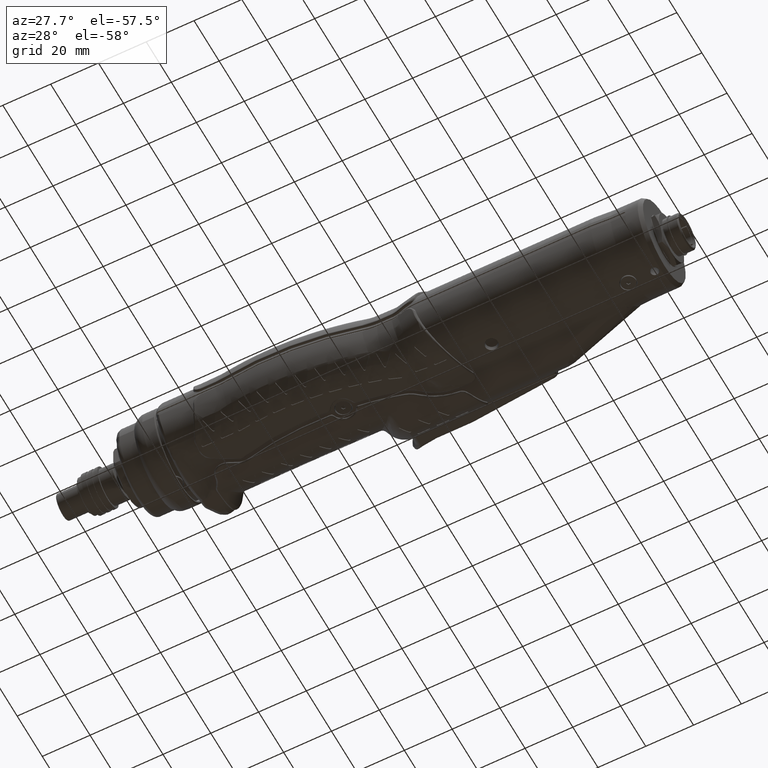
[diagram: clean part render]
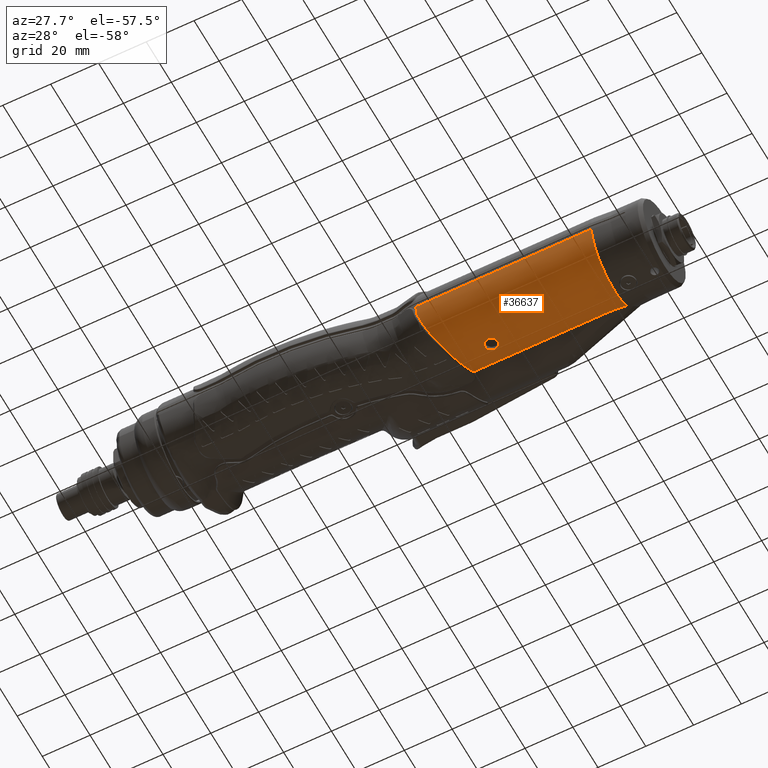
[diagram: same view with one face highlighted and labeled with its STEP entity id]
A machine part, auxiliary view. The second image highlights one B-rep face of the part: STEP entity #36637.
In plain terms, the highlighted cylindrical surface (partial cylindrical patch) has radius 18.5 mm, axis along (1, 0, 0).
Its self-contained STEP definition (entity closure, byte-faithful):
#81=FACE_BOUND('',#9241,.T.);
#1811=LINE('',#58648,#3725);
#1839=LINE('',#59231,#3753);
#3725=VECTOR('',#44867,10.);
#3753=VECTOR('',#44935,10.);
#5038=ELLIPSE('',#39548,297.040718051805,18.5);
#5638=CYLINDRICAL_SURFACE('',#39546,18.5);
#6893=FACE_OUTER_BOUND('',#9240,.T.);
#9240=EDGE_LOOP('',(#26896,#26897,#26898,#26899,#26900,#26901,#26902));
#9241=EDGE_LOOP('',(#26903,#26904));
#11535=CIRCLE('',#39547,18.5);
#11536=CIRCLE('',#39549,18.5);
#12478=B_SPLINE_CURVE_WITH_KNOTS('',3,(#59208,#59209,#59210,#59211,#59212,
#59213,#59214,#59215,#59216,#59217,#59218,#59219,#59220,#59221,#59222,#59223,
#59224,#59225,#59226,#59227,#59228,#59229),.UNSPECIFIED.,.F.,.F.,(4,2,2,
2,2,2,2,2,2,2,4),(6.3473237850227,6.43288841858804,6.78289384063464,7.13289926268123,
7.5095840936805,7.88626892467976,8.26295375567903,8.63963858667829,8.99848788548487,
9.35733718429145,9.54325160797309),.UNSPECIFIED.);
#12479=B_SPLINE_CURVE_WITH_KNOTS('',3,(#59233,#59234,#59235,#59236,#59237,
#59238),.UNSPECIFIED.,.F.,.F.,(4,1,1,4),(0.699848391335928,0.991103510710776,
1.28235863008562,1.7192413091479),.UNSPECIFIED.);
#12480=B_SPLINE_CURVE_WITH_KNOTS('',3,(#59245,#59246,#59247,#59248,#59249,
#59250,#59251,#59252,#59253,#59254),.UNSPECIFIED.,.F.,.F.,(4,2,2,2,4),(0.,
0.0984317264590929,0.196863452918186,0.295378180244501,0.393892907570816),
 .UNSPECIFIED.);
#12481=B_SPLINE_CURVE_WITH_KNOTS('',3,(#59255,#59256,#59257,#59258,#59259,
#59260,#59261,#59262,#59263,#59264,#59265,#59266,#59267,#59268,#59269,#59270,
#59271,#59272,#59273,#59274,#59275,#59276,#59277,#59278,#59279,#59280),
 .UNSPECIFIED.,.F.,.F.,(4,2,2,2,2,2,2,2,2,2,2,2,4),(0.393892907570816,0.492407634897131,
0.590922362223445,0.689354088682538,0.787785815141631,0.886217541600724,
0.984649268059817,1.08316399538613,1.18167872271245,1.28019345003876,1.37870817736508,
1.47713990382417,1.57557163028326),.UNSPECIFIED.);
#15180=VERTEX_POINT('',#57612);
#15400=VERTEX_POINT('',#58647);
#15470=VERTEX_POINT('',#59206);
#15471=VERTEX_POINT('',#59207);
#15472=VERTEX_POINT('',#59230);
#15473=VERTEX_POINT('',#59232);
#15474=VERTEX_POINT('',#59239);
#15475=VERTEX_POINT('',#59243);
#15476=VERTEX_POINT('',#59244);
#19600=EDGE_CURVE('',#15400,#15180,#1811,.T.);
#19688=EDGE_CURVE('',#15470,#15471,#12478,.T.);
#19689=EDGE_CURVE('',#15472,#15471,#1839,.T.);
#19690=EDGE_CURVE('',#15473,#15472,#12479,.T.);
#19691=EDGE_CURVE('',#15473,#15474,#11535,.T.);
#19692=EDGE_CURVE('',#15474,#15400,#5038,.T.);
#19693=EDGE_CURVE('',#15180,#15470,#11536,.T.);
#19694=EDGE_CURVE('',#15475,#15476,#12480,.T.);
#19695=EDGE_CURVE('',#15476,#15475,#12481,.T.);
#26896=ORIENTED_EDGE('',*,*,#19688,.T.);
#26897=ORIENTED_EDGE('',*,*,#19689,.F.);
#26898=ORIENTED_EDGE('',*,*,#19690,.F.);
#26899=ORIENTED_EDGE('',*,*,#19691,.T.);
#26900=ORIENTED_EDGE('',*,*,#19692,.T.);
#26901=ORIENTED_EDGE('',*,*,#19600,.T.);
#26902=ORIENTED_EDGE('',*,*,#19693,.T.);
#26903=ORIENTED_EDGE('',*,*,#19694,.T.);
#26904=ORIENTED_EDGE('',*,*,#19695,.T.);
#36637=ADVANCED_FACE('',(#6893,#81),#5638,.T.);
#39546=AXIS2_PLACEMENT_3D('',#59205,#44933,#44934);
#39547=AXIS2_PLACEMENT_3D('',#59240,#44936,#44937);
#39548=AXIS2_PLACEMENT_3D('',#59241,#44938,#44939);
#39549=AXIS2_PLACEMENT_3D('',#59242,#44940,#44941);
#44867=DIRECTION('',(-1.,0.,0.));
#44933=DIRECTION('center_axis',(1.,0.,0.));
#44934=DIRECTION('ref_axis',(0.,-1.,0.));
#44935=DIRECTION('',(-1.,0.,0.));
#44936=DIRECTION('center_axis',(-1.,0.,0.));
#44937=DIRECTION('ref_axis',(0.,-1.,0.));
#44938=DIRECTION('center_axis',(-0.0622810236971402,0.996496379154252,0.0558215049931637));
#44939=DIRECTION('ref_axis',(-0.99805865262881,-0.0621835344453471,-0.00348338293158634));
#44940=DIRECTION('center_axis',(1.,0.,0.));
#44941=DIRECTION('ref_axis',(0.,0.,-1.));
#57612=CARTESIAN_POINT('',(108.,-18.384706504471,-2.06217524581701));
#58647=CARTESIAN_POINT('',(181.296400589888,-18.384706504471,-2.06217524581696));
#58648=CARTESIAN_POINT('',(144.65,-18.384706504471,-2.06217524581696));
#59205=CARTESIAN_POINT('Origin',(144.65,0.,0.));
#59206=CARTESIAN_POINT('',(108.,-17.4296372041669,-6.20143103897175));
#59207=CARTESIAN_POINT('',(117.709605004166,8.7878559110383,-16.2795450945912));
#59208=CARTESIAN_POINT('Ctrl Pts',(108.,-17.4296372041669,-6.20143103897175));
#59209=CARTESIAN_POINT('Ctrl Pts',(108.053650356973,-17.3302373515479,-6.48080258376669));
#59210=CARTESIAN_POINT('Ctrl Pts',(108.110662515367,-17.2242068700937,-6.75752462493135));
#59211=CARTESIAN_POINT('Ctrl Pts',(108.416793910509,-16.6520976357089,-8.14989766158282));
#59212=CARTESIAN_POINT('Ctrl Pts',(108.716195464902,-16.0838517912481,-9.21669302897662));
#59213=CARTESIAN_POINT('Ctrl Pts',(109.379930906669,-14.7849153359103,-11.182307339896));
#59214=CARTESIAN_POINT('Ctrl Pts',(109.74401873187,-14.054158768063,-12.081165777262));
#59215=CARTESIAN_POINT('Ctrl Pts',(110.513086103481,-12.4555195943865,-13.7305382478289));
#59216=CARTESIAN_POINT('Ctrl Pts',(110.948870210501,-11.5200823289128,-14.5282486962095));
#59217=CARTESIAN_POINT('Ctrl Pts',(111.853550938421,-9.48183777922309,-15.9335199945852));
#59218=CARTESIAN_POINT('Ctrl Pts',(112.322219824736,-8.3790348626719,-16.5412337763603));
#59219=CARTESIAN_POINT('Ctrl Pts',(113.249637209678,-6.07159992380535,-17.5201689291634));
#59220=CARTESIAN_POINT('Ctrl Pts',(113.708864469952,-4.86540347141322,-17.8919714113757));
#59221=CARTESIAN_POINT('Ctrl Pts',(114.581591353868,-2.42838787476378,-18.3819945669735));
#59222=CARTESIAN_POINT('Ctrl Pts',(114.995057979117,-1.19751363905229,-18.5));
#59223=CARTESIAN_POINT('Ctrl Pts',(115.732252727857,1.14081294047666,-18.5));
#59224=CARTESIAN_POINT('Ctrl Pts',(116.083728276386,2.32897540439131,-18.3927459724879));
#59225=CARTESIAN_POINT('Ctrl Pts',(116.738681833699,4.70735168028072,-17.9320403470145));
#59226=CARTESIAN_POINT('Ctrl Pts',(117.042212397249,5.89755134216134,-17.5785904148108));
#59227=CARTESIAN_POINT('Ctrl Pts',(117.45407434781,7.63837307652401,-16.8617337090785));
#59228=CARTESIAN_POINT('Ctrl Pts',(117.586251240292,8.2214593785402,-16.5852914214808));
#59229=CARTESIAN_POINT('Ctrl Pts',(117.709605004166,8.7878559110383,-16.2795450945912));
#59230=CARTESIAN_POINT('',(171.620611076957,8.78785591103831,-16.2795450945912));
#59231=CARTESIAN_POINT('',(144.65,8.78785591103829,-16.2795450945912));
#59232=CARTESIAN_POINT('',(181.299999999252,9.95077601828565,-15.5958987119663));
#59233=CARTESIAN_POINT('Ctrl Pts',(181.299999999113,9.95077601853107,-15.5958987118097));
#59234=CARTESIAN_POINT('Ctrl Pts',(180.566394143413,9.65473445998071,-15.7847844756728));
#59235=CARTESIAN_POINT('Ctrl Pts',(178.837740862033,9.20606954342001,-16.0496054895054));
#59236=CARTESIAN_POINT('Ctrl Pts',(175.502809367229,8.84151201269073,-16.2511753447401));
#59237=CARTESIAN_POINT('Ctrl Pts',(173.076886673831,8.7878559110383,-16.2795450945912));
#59238=CARTESIAN_POINT('Ctrl Pts',(171.620611076957,8.7878559110383,-16.2795450945912));
#59239=CARTESIAN_POINT('',(181.3,-18.3842575480751,-2.06617385668418));
#59240=CARTESIAN_POINT('Origin',(181.3,0.,0.));
#59241=CARTESIAN_POINT('Origin',(477.300000000003,0.,0.));
#59242=CARTESIAN_POINT('Origin',(108.,0.,0.));
#59243=CARTESIAN_POINT('',(130.,2.60563237108212,-18.315585711267));
#59244=CARTESIAN_POINT('',(127.384702885577,3.20281523999704E-16,-18.5));
#59245=CARTESIAN_POINT('Ctrl Pts',(130.,2.60563237108212,-18.315585711267));
#59246=CARTESIAN_POINT('Ctrl Pts',(129.671894245136,2.60563237108212,-18.315585711267));
#59247=CARTESIAN_POINT('Ctrl Pts',(129.32207610444,2.5403686522331,-18.3252397251528));
#59248=CARTESIAN_POINT('Ctrl Pts',(128.678595570429,2.27518271439093,-18.3600497658054));
#59249=CARTESIAN_POINT('Ctrl Pts',(128.384898943097,2.07527673205108,-18.3846947665297));
#59250=CARTESIAN_POINT('Ctrl Pts',(127.920469595299,1.61360370506461,-18.4309562688506));
#59251=CARTESIAN_POINT('Ctrl Pts',(127.718715112955,1.32080420227874,-18.4555956080538));
#59252=CARTESIAN_POINT('Ctrl Pts',(127.450816410743,0.678213249688294,-18.4903639711306));
#59253=CARTESIAN_POINT('Ctrl Pts',(127.384702885577,0.328382424421052,-18.5));
#59254=CARTESIAN_POINT('Ctrl Pts',(127.384702885577,1.87350135405495E-15,
-18.5));
#59255=CARTESIAN_POINT('Ctrl Pts',(127.384702885577,-6.24500451351651E-16,
-18.5));
#59256=CARTESIAN_POINT('Ctrl Pts',(127.384702885577,-0.32838242442105,-18.5));
#59257=CARTESIAN_POINT('Ctrl Pts',(127.450816410743,-0.678213249688294,
-18.4903639711306));
#59258=CARTESIAN_POINT('Ctrl Pts',(127.718715112955,-1.32080420227874,-18.4555956080538));
#59259=CARTESIAN_POINT('Ctrl Pts',(127.920469595299,-1.61360370506461,-18.4309562688506));
#59260=CARTESIAN_POINT('Ctrl Pts',(128.384898943097,-2.07527673205108,-18.3846947665297));
#59261=CARTESIAN_POINT('Ctrl Pts',(128.678595570429,-2.27518271439093,-18.3600497658054));
#59262=CARTESIAN_POINT('Ctrl Pts',(129.32207610444,-2.5403686522331,-18.3252397251528));
#59263=CARTESIAN_POINT('Ctrl Pts',(129.671894245136,-2.60563237108212,-18.315585711267));
#59264=CARTESIAN_POINT('Ctrl Pts',(130.328105754864,-2.60563237108212,-18.315585711267));
#59265=CARTESIAN_POINT('Ctrl Pts',(130.67792389556,-2.5403686522331,-18.3252397251528));
#59266=CARTESIAN_POINT('Ctrl Pts',(131.321404429571,-2.27518271439093,-18.3600497658054));
#59267=CARTESIAN_POINT('Ctrl Pts',(131.615101056903,-2.07527673205108,-18.3846947665297));
#59268=CARTESIAN_POINT('Ctrl Pts',(132.079530404701,-1.61360370506461,-18.4309562688506));
#59269=CARTESIAN_POINT('Ctrl Pts',(132.281284887045,-1.32080420227874,-18.4555956080538));
#59270=CARTESIAN_POINT('Ctrl Pts',(132.549183589257,-0.678213249688288,
-18.4903639711306));
#59271=CARTESIAN_POINT('Ctrl Pts',(132.615297114423,-0.32838242442105,-18.5));
#59272=CARTESIAN_POINT('Ctrl Pts',(132.615297114423,0.328382424421049,-18.5));
#59273=CARTESIAN_POINT('Ctrl Pts',(132.549183589257,0.678213249688287,-18.4903639711306));
#59274=CARTESIAN_POINT('Ctrl Pts',(132.281284887045,1.32080420227873,-18.4555956080538));
#59275=CARTESIAN_POINT('Ctrl Pts',(132.079530404701,1.61360370506461,-18.4309562688506));
#59276=CARTESIAN_POINT('Ctrl Pts',(131.615101056903,2.07527673205108,-18.3846947665297));
#59277=CARTESIAN_POINT('Ctrl Pts',(131.321404429571,2.27518271439093,-18.3600497658054));
#59278=CARTESIAN_POINT('Ctrl Pts',(130.67792389556,2.5403686522331,-18.3252397251528));
#59279=CARTESIAN_POINT('Ctrl Pts',(130.328105754864,2.60563237108212,-18.315585711267));
#59280=CARTESIAN_POINT('Ctrl Pts',(130.,2.60563237108212,-18.315585711267));